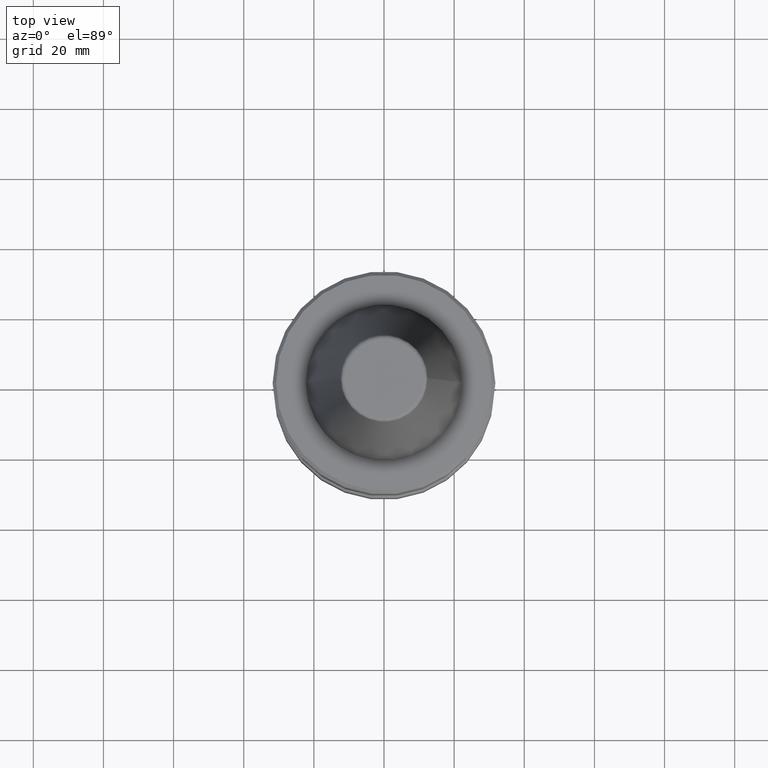
[diagram: clean part render]
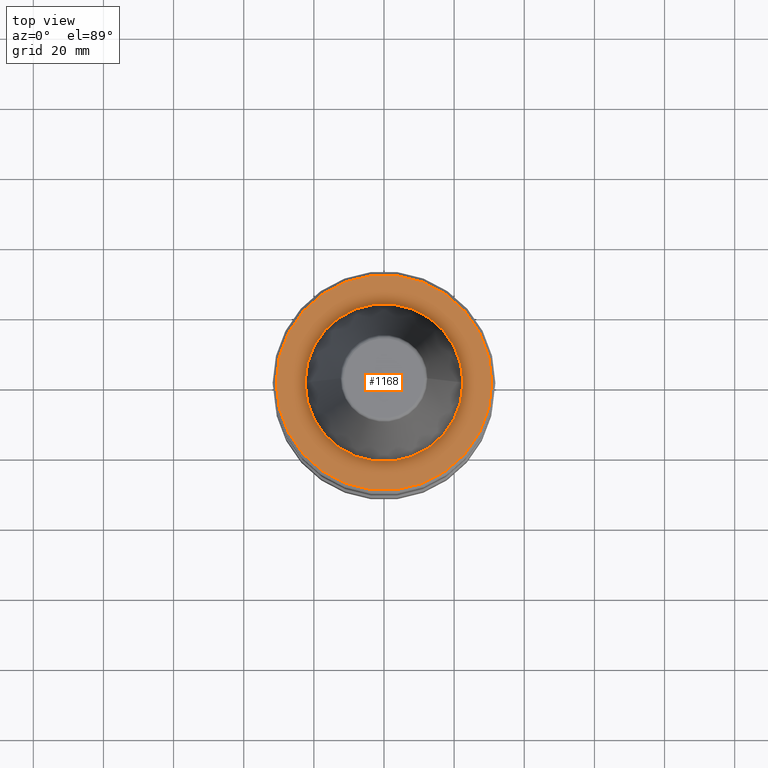
[diagram: same view with one face highlighted and labeled with its STEP entity id]
A machine part, top view. The second image highlights one B-rep face of the part: STEP entity #1168.
In plain terms, the highlighted planar face has unit normal (0, 0, -1).
Its self-contained STEP definition (entity closure, byte-faithful):
#46 = AXIS2_PLACEMENT_3D ( 'NONE', #904, #626, #1700 ) ;
#69 = FACE_OUTER_BOUND ( 'NONE', #796, .T. ) ;
#124 = FACE_BOUND ( 'NONE', #1017, .T. ) ;
#205 = DIRECTION ( 'NONE',  ( -1.000000000000000000, 0.0000000000000000000, -0.0000000000000000000 ) ) ;
#206 = DIRECTION ( 'NONE',  ( 0.0000000000000000000, 0.0000000000000000000, -1.000000000000000000 ) ) ;
#215 = CARTESIAN_POINT ( 'NONE',  ( 0.0000000000000000000, 0.0000000000000000000, -3.199999999999814100 ) ) ;
#224 = PLANE ( 'NONE',  #334 ) ;
#265 = CARTESIAN_POINT ( 'NONE',  ( -22.50000000000051900, 2.755455298081607900E-015, -3.199999999999883400 ) ) ;
#300 = EDGE_CURVE ( 'NONE', #792, #1974, #1094, .T. ) ;
#310 = CARTESIAN_POINT ( 'NONE',  ( -30.75000000000005700, 0.0000000000000000000, -3.199999999999814100 ) ) ;
#334 = AXIS2_PLACEMENT_3D ( 'NONE', #215, #206, #205 ) ;
#568 = CIRCLE ( 'NONE', #46, 30.75000000000005700 ) ;
#619 = DIRECTION ( 'NONE',  ( 1.000000000000000000, 0.0000000000000000000, 0.0000000000000000000 ) ) ;
#620 = DIRECTION ( 'NONE',  ( -0.0000000000000000000, -0.0000000000000000000, 1.000000000000000000 ) ) ;
#621 = CARTESIAN_POINT ( 'NONE',  ( 0.0000000000000000000, 0.0000000000000000000, -3.199999999999814100 ) ) ;
#626 = DIRECTION ( 'NONE',  ( -0.0000000000000000000, -0.0000000000000000000, 1.000000000000000000 ) ) ;
#771 = AXIS2_PLACEMENT_3D ( 'NONE', #1980, #1068, #1432 ) ;
#792 = VERTEX_POINT ( 'NONE', #801 ) ;
#796 = EDGE_LOOP ( 'NONE', ( #1274, #1442 ) ) ;
#801 = CARTESIAN_POINT ( 'NONE',  ( 22.50000000000051900, 0.0000000000000000000, -3.199999999999883400 ) ) ;
#863 = ORIENTED_EDGE ( 'NONE', *, *, #1590, .F. ) ;
#878 = EDGE_CURVE ( 'NONE', #1063, #1489, #1760, .T. ) ;
#904 = CARTESIAN_POINT ( 'NONE',  ( 0.0000000000000000000, 0.0000000000000000000, -3.199999999999814100 ) ) ;
#1017 = EDGE_LOOP ( 'NONE', ( #1102, #863 ) ) ;
#1063 = VERTEX_POINT ( 'NONE', #310 ) ;
#1065 = CIRCLE ( 'NONE', #1169, 22.50000000000051900 ) ;
#1068 = DIRECTION ( 'NONE',  ( -0.0000000000000000000, -0.0000000000000000000, 1.000000000000000000 ) ) ;
#1094 = CIRCLE ( 'NONE', #771, 22.50000000000051900 ) ;
#1102 = ORIENTED_EDGE ( 'NONE', *, *, #300, .F. ) ;
#1168 = ADVANCED_FACE ( 'NONE', ( #124, #69 ), #224, .F. ) ;
#1169 = AXIS2_PLACEMENT_3D ( 'NONE', #1620, #1461, #1276 ) ;
#1217 = AXIS2_PLACEMENT_3D ( 'NONE', #621, #620, #619 ) ;
#1274 = ORIENTED_EDGE ( 'NONE', *, *, #878, .T. ) ;
#1276 = DIRECTION ( 'NONE',  ( 1.000000000000000000, 0.0000000000000000000, 0.0000000000000000000 ) ) ;
#1382 = CARTESIAN_POINT ( 'NONE',  ( 30.75000000000005700, 3.827021247335486000E-015, -3.199999999999814100 ) ) ;
#1432 = DIRECTION ( 'NONE',  ( 1.000000000000000000, 0.0000000000000000000, 0.0000000000000000000 ) ) ;
#1442 = ORIENTED_EDGE ( 'NONE', *, *, #1921, .T. ) ;
#1461 = DIRECTION ( 'NONE',  ( -0.0000000000000000000, -0.0000000000000000000, 1.000000000000000000 ) ) ;
#1489 = VERTEX_POINT ( 'NONE', #1382 ) ;
#1590 = EDGE_CURVE ( 'NONE', #1974, #792, #1065, .T. ) ;
#1620 = CARTESIAN_POINT ( 'NONE',  ( 0.0000000000000000000, 0.0000000000000000000, -3.199999999999814100 ) ) ;
#1700 = DIRECTION ( 'NONE',  ( 1.000000000000000000, 0.0000000000000000000, 0.0000000000000000000 ) ) ;
#1760 = CIRCLE ( 'NONE', #1217, 30.75000000000005700 ) ;
#1921 = EDGE_CURVE ( 'NONE', #1489, #1063, #568, .T. ) ;
#1974 = VERTEX_POINT ( 'NONE', #265 ) ;
#1980 = CARTESIAN_POINT ( 'NONE',  ( 0.0000000000000000000, 0.0000000000000000000, -3.199999999999814100 ) ) ;